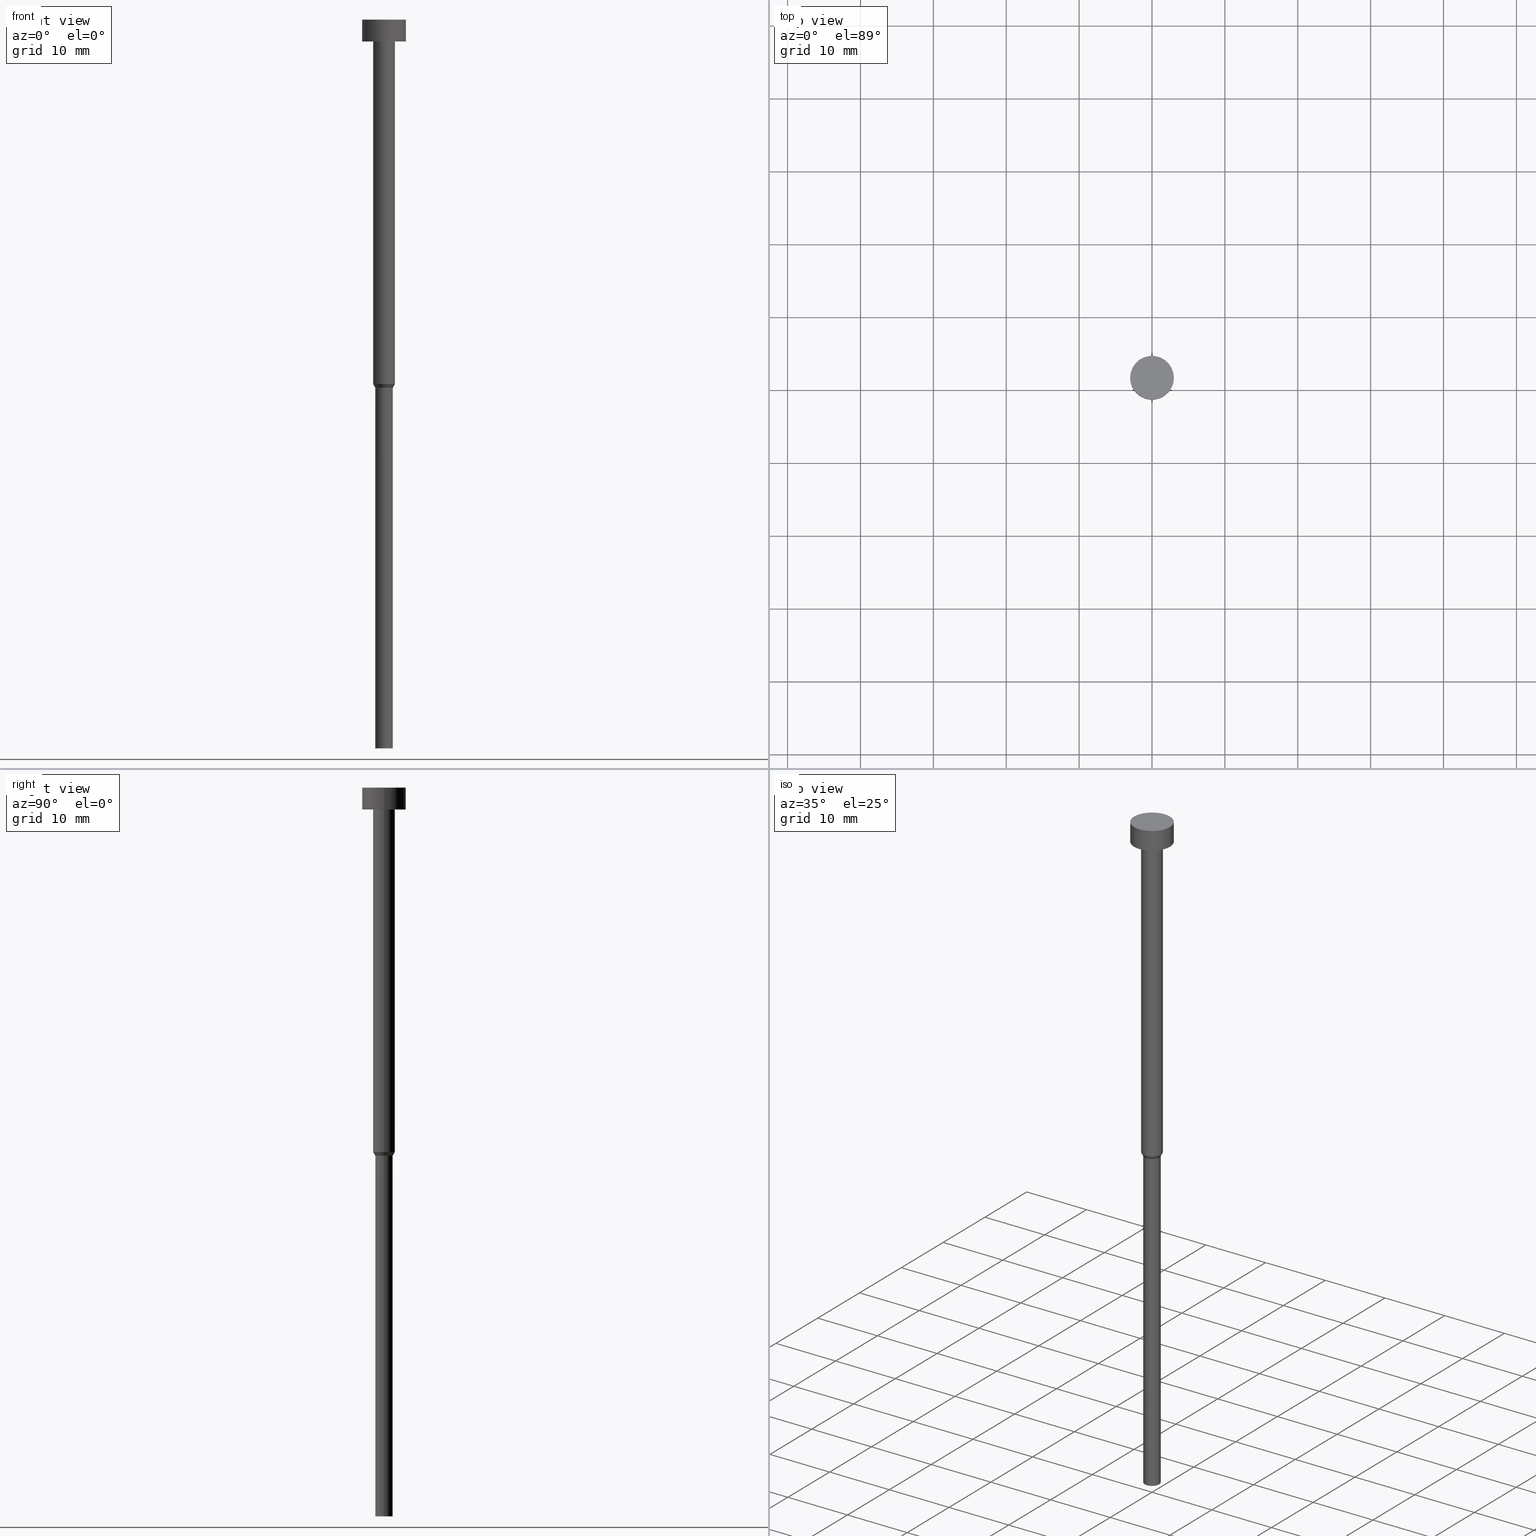
[diagram: canonical four-view strip — front | top / right | iso, engineering-drawing reading convention]
A machine part, canonical four-view strip (front | top / right | iso — engineering-drawing reading convention). The complete STEP part file that produces these views, byte-faithful:
ISO-10303-21;
HEADER;
FILE_DESCRIPTION (( 'STEP AP203' ),
    '1' );
FILE_NAME ('60b3.STEP',
    '2023-02-13T10:55:11',
    ( '' ),
    ( '' ),
    'SwSTEP 2.0',
    'SolidWorks 2019',
    '' );
FILE_SCHEMA (( 'CONFIG_CONTROL_DESIGN' ));
ENDSEC;

DATA;
#1 = FACE_BOUND ( 'NONE', #113, .T. ) ;
#2 = DIRECTION ( 'NONE',  ( 0.000000000000000000, 0.000000000000000000, -1.000000000000000000 ) ) ;
#3 = LOCAL_TIME ( 11, 55, 11.00000000000000000, #320 ) ;
#4 = FACE_OUTER_BOUND ( 'NONE', #191, .T. ) ;
#5 = CYLINDRICAL_SURFACE ( 'NONE', #234, 1.199999999999999956 ) ;
#6 = DIRECTION ( 'NONE',  ( -0.000000000000000000, -0.000000000000000000, 1.000000000000000000 ) ) ;
#7 = LOCAL_TIME ( 11, 55, 11.00000000000000000, #68 ) ;
#8 = ADVANCED_BREP_SHAPE_REPRESENTATION ( '60b3', ( #140, #119 ), #343 ) ;
#9 = CALENDAR_DATE ( 2023, 13, 2 ) ;
#10 = DATE_AND_TIME ( #48, #7 ) ;
#11 = ORIENTED_EDGE ( 'NONE', *, *, #139, .T. ) ;
#12 = DIRECTION ( 'NONE',  ( 0.000000000000000000, 0.000000000000000000, -1.000000000000000000 ) ) ;
#13 = PERSON_AND_ORGANIZATION_ROLE ( 'classification_officer' ) ;
#14 = VERTEX_POINT ( 'NONE', #315 ) ;
#15 = EDGE_CURVE ( 'NONE', #96, #291, #123, .T. ) ;
#16 = VERTEX_POINT ( 'NONE', #84 ) ;
#17 = CYLINDRICAL_SURFACE ( 'NONE', #342, 1.500000000000000000 ) ;
#18 = CARTESIAN_POINT ( 'NONE',  ( -1.500000000000000000, 1.836970198721029934E-16, -3.000000000000000888 ) ) ;
#19 = DIRECTION ( 'NONE',  ( 1.000000000000000000, 0.000000000000000000, 0.000000000000000000 ) ) ;
#20 = VERTEX_POINT ( 'NONE', #94 ) ;
#21 = EDGE_CURVE ( 'NONE', #132, #14, #201, .T. ) ;
#22 = CIRCLE ( 'NONE', #67, 3.000000000000000000 ) ;
#23 = CARTESIAN_POINT ( 'NONE',  ( 0.000000000000000000, 0.000000000000000000, 0.000000000000000000 ) ) ;
#24 = DIRECTION ( 'NONE',  ( 1.000000000000000000, 0.000000000000000000, 0.000000000000000000 ) ) ;
#25 = ORIENTED_EDGE ( 'NONE', *, *, #151, .F. ) ;
#26 = ORIENTED_EDGE ( 'NONE', *, *, #253, .T. ) ;
#27 = DIRECTION ( 'NONE',  ( 1.000000000000000000, 0.000000000000000000, 0.000000000000000000 ) ) ;
#28 = CARTESIAN_POINT ( 'NONE',  ( 1.500000000000000000, 0.000000000000000000, -50.00000000000000000 ) ) ;
#29 = EDGE_LOOP ( 'NONE', ( #25, #279 ) ) ;
#30 = CARTESIAN_POINT ( 'NONE',  ( 0.000000000000000000, 0.000000000000000000, 0.000000000000000000 ) ) ;
#31 = EDGE_LOOP ( 'NONE', ( #297, #303, #120, #256 ) ) ;
#32 = PRODUCT_DEFINITION_SHAPE ( 'NONE', 'NONE',  #283 ) ;
#33 = AXIS2_PLACEMENT_3D ( 'NONE', #302, #352, #327 ) ;
#34 = DIRECTION ( 'NONE',  ( 0.000000000000000000, -0.000000000000000000, 1.000000000000000000 ) ) ;
#35 = AXIS2_PLACEMENT_3D ( 'NONE', #130, #276, #127 ) ;
#36 = EDGE_CURVE ( 'NONE', #14, #62, #133, .T. ) ;
#37 =( NAMED_UNIT ( * ) SI_UNIT ( $, .STERADIAN. ) SOLID_ANGLE_UNIT ( ) );
#38 = AXIS2_PLACEMENT_3D ( 'NONE', #226, #34, #86 ) ;
#39 =( NAMED_UNIT ( * ) PLANE_ANGLE_UNIT ( ) SI_UNIT ( $, .RADIAN. ) );
#40 = APPLICATION_PROTOCOL_DEFINITION ( 'international standard', 'config_control_design', 1994, #167 ) ;
#41 = DIRECTION ( 'NONE',  ( -0.000000000000000000, -0.000000000000000000, 1.000000000000000000 ) ) ;
#42 = ORIENTED_EDGE ( 'NONE', *, *, #142, .T. ) ;
#43 = CALENDAR_DATE ( 2023, 13, 2 ) ;
#44 = CALENDAR_DATE ( 2023, 13, 2 ) ;
#45 = DESIGN_CONTEXT ( 'detailed design', #75, 'design' ) ;
#46 = APPROVAL_PERSON_ORGANIZATION ( #70, #289, #47 ) ;
#47 = APPROVAL_ROLE ( '' ) ;
#48 = CALENDAR_DATE ( 2023, 13, 2 ) ;
#49 = CARTESIAN_POINT ( 'NONE',  ( 0.000000000000000000, 0.000000000000000000, -3.673940397442059868E-16 ) ) ;
#50 = DIRECTION ( 'NONE',  ( -0.000000000000000000, -0.000000000000000000, 1.000000000000000000 ) ) ;
#51 = EDGE_CURVE ( 'NONE', #20, #146, #300, .T. ) ;
#52 = ORIENTED_EDGE ( 'NONE', *, *, #151, .T. ) ;
#53 = ORIENTED_EDGE ( 'NONE', *, *, #36, .F. ) ;
#54 = CARTESIAN_POINT ( 'NONE',  ( 0.000000000000000000, 0.000000000000000000, 0.000000000000000000 ) ) ;
#55 = EDGE_LOOP ( 'NONE', ( #108, #331, #242, #107 ) ) ;
#56 = CARTESIAN_POINT ( 'NONE',  ( 0.000000000000000000, 0.000000000000000000, -3.000000000000000888 ) ) ;
#57 = DIRECTION ( 'NONE',  ( -0.000000000000000000, -0.000000000000000000, 1.000000000000000000 ) ) ;
#58 = DIRECTION ( 'NONE',  ( -0.000000000000000000, -0.000000000000000000, 1.000000000000000000 ) ) ;
#59 = ADVANCED_FACE ( 'NONE', ( #1, #337 ), #63, .T. ) ;
#60 = ORIENTED_EDGE ( 'NONE', *, *, #83, .T. ) ;
#61 = CARTESIAN_POINT ( 'NONE',  ( -1.199999999999999956, 1.469576158976823553E-16, -50.51961524227066747 ) ) ;
#62 = VERTEX_POINT ( 'NONE', #186 ) ;
#63 = PLANE ( 'NONE',  #313 ) ;
#64 = EDGE_CURVE ( 'NONE', #20, #193, #22, .T. ) ;
#65 = ADVANCED_FACE ( 'NONE', ( #76 ), #159, .T. ) ;
#66 = CARTESIAN_POINT ( 'NONE',  ( 1.500000000000000000, 0.000000000000000000, -3.000000000000000888 ) ) ;
#67 = AXIS2_PLACEMENT_3D ( 'NONE', #214, #157, #24 ) ;
#68 = COORDINATED_UNIVERSAL_TIME_OFFSET ( 1, 0, .AHEAD. ) ;
#69 = DIRECTION ( 'NONE',  ( 1.000000000000000000, 0.000000000000000000, 0.000000000000000000 ) ) ;
#70 = PERSON_AND_ORGANIZATION ( #321, #176 ) ;
#71 = PERSON_AND_ORGANIZATION_ROLE ( 'creator' ) ;
#72 = FACE_OUTER_BOUND ( 'NONE', #55, .T. ) ;
#73 = PERSON_AND_ORGANIZATION_ROLE ( 'design_owner' ) ;
#74 = EDGE_CURVE ( 'NONE', #164, #132, #189, .T. ) ;
#75 = APPLICATION_CONTEXT ( 'configuration controlled 3d designs of mechanical parts and assemblies' ) ;
#76 = FACE_OUTER_BOUND ( 'NONE', #262, .T. ) ;
#77 = CIRCLE ( 'NONE', #281, 1.500000000000000000 ) ;
#78 = APPROVAL_PERSON_ORGANIZATION ( #121, #221, #345 ) ;
#79 = DIRECTION ( 'NONE',  ( 1.000000000000000000, 0.000000000000000000, 0.000000000000000000 ) ) ;
#80 = EDGE_CURVE ( 'NONE', #14, #207, #161, .T. ) ;
#81 = DIRECTION ( 'NONE',  ( -0.000000000000000000, -0.000000000000000000, 1.000000000000000000 ) ) ;
#82 = PRODUCT ( '60b3', '60b3', '', ( #141 ) ) ;
#83 = EDGE_CURVE ( 'NONE', #207, #243, #238, .T. ) ;
#84 = CARTESIAN_POINT ( 'NONE',  ( 3.000000000000000000, 0.000000000000000000, -3.673940397442059868E-16 ) ) ;
#85 = DIRECTION ( 'NONE',  ( 1.000000000000000000, 0.000000000000000000, 0.000000000000000000 ) ) ;
#86 = DIRECTION ( 'NONE',  ( 1.000000000000000000, 0.000000000000000000, 0.000000000000000000 ) ) ;
#87 = AXIS2_PLACEMENT_3D ( 'NONE', #54, #50, #19 ) ;
#88 = EDGE_LOOP ( 'NONE', ( #42, #335, #181, #220 ) ) ;
#89 = AXIS2_PLACEMENT_3D ( 'NONE', #49, #205, #274 ) ;
#90 = VECTOR ( 'NONE', #333, 1000.000000000000000 ) ;
#91 = COORDINATED_UNIVERSAL_TIME_OFFSET ( 1, 0, .AHEAD. ) ;
#92 = CC_DESIGN_PERSON_AND_ORGANIZATION_ASSIGNMENT ( #208, #71, ( #283 ) ) ;
#93 = EDGE_CURVE ( 'NONE', #146, #16, #212, .T. ) ;
#94 = CARTESIAN_POINT ( 'NONE',  ( -3.000000000000000000, 3.673940397442059868E-16, -3.000000000000000888 ) ) ;
#95 = PERSON_AND_ORGANIZATION ( #321, #176 ) ;
#96 = VERTEX_POINT ( 'NONE', #18 ) ;
#97 = CALENDAR_DATE ( 2023, 13, 2 ) ;
#98 = CONICAL_SURFACE ( 'NONE', #195, 1.500000000000000000, 0.5235987755982992597 ) ;
#99 = DIRECTION ( 'NONE',  ( -0.5000000000000003331, 6.123233995736769734E-17, 0.8660254037844383745 ) ) ;
#100 = PERSON_AND_ORGANIZATION ( #321, #176 ) ;
#101 = ORIENTED_EDGE ( 'NONE', *, *, #135, .F. ) ;
#102 = AXIS2_PLACEMENT_3D ( 'NONE', #228, #340, #210 ) ;
#103 = ADVANCED_FACE ( 'NONE', ( #72 ), #311, .T. ) ;
#104 = CARTESIAN_POINT ( 'NONE',  ( 1.500000000000000000, 0.000000000000000000, 0.000000000000000000 ) ) ;
#105 = AXIS2_PLACEMENT_3D ( 'NONE', #264, #296, #270 ) ;
#106 = CARTESIAN_POINT ( 'NONE',  ( 0.000000000000000000, -3.000000000000000000, -3.000000000000000888 ) ) ;
#107 = ORIENTED_EDGE ( 'NONE', *, *, #355, .F. ) ;
#108 = ORIENTED_EDGE ( 'NONE', *, *, #83, .F. ) ;
#109 = ORIENTED_EDGE ( 'NONE', *, *, #93, .F. ) ;
#110 = PLANE ( 'NONE',  #38 ) ;
#111 = DIRECTION ( 'NONE',  ( -0.000000000000000000, -0.000000000000000000, 1.000000000000000000 ) ) ;
#112 = EDGE_LOOP ( 'NONE', ( #52, #183, #152, #158 ) ) ;
#113 = EDGE_LOOP ( 'NONE', ( #239, #286 ) ) ;
#114 = ADVANCED_FACE ( 'NONE', ( #267 ), #323, .T. ) ;
#115 = DIRECTION ( 'NONE',  ( -0.000000000000000000, -0.000000000000000000, 1.000000000000000000 ) ) ;
#116 = APPROVAL_DATE_TIME ( #346, #196 ) ;
#117 = ADVANCED_FACE ( 'NONE', ( #179 ), #17, .T. ) ;
#118 = CIRCLE ( 'NONE', #197, 1.199999999999999956 ) ;
#119 = AXIS2_PLACEMENT_3D ( 'NONE', #269, #204, #237 ) ;
#120 = ORIENTED_EDGE ( 'NONE', *, *, #309, .F. ) ;
#121 = PERSON_AND_ORGANIZATION ( #321, #176 ) ;
#122 = DATE_TIME_ROLE ( 'classification_date' ) ;
#123 = CIRCLE ( 'NONE', #332, 1.500000000000000000 ) ;
#124 = ORIENTED_EDGE ( 'NONE', *, *, #15, .F. ) ;
#125 = DIRECTION ( 'NONE',  ( -0.000000000000000000, -0.000000000000000000, 1.000000000000000000 ) ) ;
#126 = APPROVAL_DATE_TIME ( #10, #289 ) ;
#127 = DIRECTION ( 'NONE',  ( 1.000000000000000000, 0.000000000000000000, 0.000000000000000000 ) ) ;
#128 = FACE_OUTER_BOUND ( 'NONE', #222, .T. ) ;
#129 = CC_DESIGN_SECURITY_CLASSIFICATION ( #223, ( #305 ) ) ;
#130 = CARTESIAN_POINT ( 'NONE',  ( 0.000000000000000000, 0.000000000000000000, 0.000000000000000000 ) ) ;
#131 = CARTESIAN_POINT ( 'NONE',  ( 1.199999999999999956, 0.000000000000000000, -100.0000000000000000 ) ) ;
#132 = VERTEX_POINT ( 'NONE', #131 ) ;
#133 = LINE ( 'NONE', #28, #182 ) ;
#134 = ORIENTED_EDGE ( 'NONE', *, *, #184, .F. ) ;
#135 = EDGE_CURVE ( 'NONE', #207, #14, #118, .T. ) ;
#136 = LOCAL_TIME ( 11, 55, 11.00000000000000000, #240 ) ;
#137 = CARTESIAN_POINT ( 'NONE',  ( 3.000000000000000000, 0.000000000000000000, 0.000000000000000000 ) ) ;
#138 = LINE ( 'NONE', #259, #261 ) ;
#139 = EDGE_CURVE ( 'NONE', #62, #291, #245, .T. ) ;
#140 = MANIFOLD_SOLID_BREP ( 'Rotovat1', #255 ) ;
#141 = MECHANICAL_CONTEXT ( 'NONE', #167, 'mechanical' ) ;
#142 = EDGE_CURVE ( 'NONE', #132, #164, #185, .T. ) ;
#143 = DIRECTION ( 'NONE',  ( 1.000000000000000000, 0.000000000000000000, 0.000000000000000000 ) ) ;
#144 = DIRECTION ( 'NONE',  ( 1.000000000000000000, 0.000000000000000000, 0.000000000000000000 ) ) ;
#145 = EDGE_LOOP ( 'NONE', ( #134, #229, #11, #124 ) ) ;
#146 = VERTEX_POINT ( 'NONE', #298 ) ;
#147 = DATE_AND_TIME ( #44, #136 ) ;
#148 = FACE_OUTER_BOUND ( 'NONE', #236, .T. ) ;
#149 = DIRECTION ( 'NONE',  ( -0.000000000000000000, -0.000000000000000000, 1.000000000000000000 ) ) ;
#150 = CARTESIAN_POINT ( 'NONE',  ( 0.000000000000000000, 0.000000000000000000, -50.00000000000000000 ) ) ;
#151 = EDGE_CURVE ( 'NONE', #193, #20, #175, .T. ) ;
#152 = ORIENTED_EDGE ( 'NONE', *, *, #169, .F. ) ;
#153 = UNCERTAINTY_MEASURE_WITH_UNIT (LENGTH_MEASURE( 1.000000000000000082E-05 ), #252, 'distance_accuracy_value', 'NONE');
#154 = AXIS2_PLACEMENT_3D ( 'NONE', #150, #244, #290 ) ;
#155 = LINE ( 'NONE', #301, #232 ) ;
#156 = DIRECTION ( 'NONE',  ( 1.000000000000000000, 0.000000000000000000, 0.000000000000000000 ) ) ;
#157 = DIRECTION ( 'NONE',  ( -0.000000000000000000, -0.000000000000000000, 1.000000000000000000 ) ) ;
#158 = ORIENTED_EDGE ( 'NONE', *, *, #253, .F. ) ;
#159 = CYLINDRICAL_SURFACE ( 'NONE', #166, 1.199999999999999956 ) ;
#160 = ADVANCED_FACE ( 'NONE', ( #148 ), #98, .T. ) ;
#161 = CIRCLE ( 'NONE', #105, 1.199999999999999956 ) ;
#162 = DIRECTION ( 'NONE',  ( -0.000000000000000000, -0.000000000000000000, 1.000000000000000000 ) ) ;
#163 = LOCAL_TIME ( 11, 55, 11.00000000000000000, #91 ) ;
#164 = VERTEX_POINT ( 'NONE', #174 ) ;
#165 = DIRECTION ( 'NONE',  ( -0.000000000000000000, -0.000000000000000000, 1.000000000000000000 ) ) ;
#166 = AXIS2_PLACEMENT_3D ( 'NONE', #23, #115, #230 ) ;
#167 = APPLICATION_CONTEXT ( 'configuration controlled 3d designs of mechanical parts and assemblies' ) ;
#168 = PRODUCT_RELATED_PRODUCT_CATEGORY ( 'detail', '', ( #82 ) ) ;
#169 = EDGE_CURVE ( 'NONE', #16, #146, #260, .T. ) ;
#170 = EDGE_LOOP ( 'NONE', ( #216, #338 ) ) ;
#171 = APPROVAL_ROLE ( '' ) ;
#172 = DATE_AND_TIME ( #97, #163 ) ;
#173 = SHAPE_DEFINITION_REPRESENTATION ( #32, #8 ) ;
#174 = CARTESIAN_POINT ( 'NONE',  ( -1.199999999999999956, 1.469576158976823553E-16, -100.0000000000000000 ) ) ;
#175 = CIRCLE ( 'NONE', #206, 3.000000000000000000 ) ;
#176 = ORGANIZATION ( 'NEUR�EN�', 'NEUR�EN�', '' ) ;
#177 = APPLICATION_PROTOCOL_DEFINITION ( 'international standard', 'config_control_design', 1994, #75 ) ;
#178 = CC_DESIGN_PERSON_AND_ORGANIZATION_ASSIGNMENT ( #100, #73, ( #82 ) ) ;
#179 = FACE_OUTER_BOUND ( 'NONE', #31, .T. ) ;
#180 = PERSON_AND_ORGANIZATION_ROLE ( 'design_supplier' ) ;
#181 = ORIENTED_EDGE ( 'NONE', *, *, #80, .F. ) ;
#182 = VECTOR ( 'NONE', #254, 1000.000000000000114 ) ;
#183 = ORIENTED_EDGE ( 'NONE', *, *, #51, .T. ) ;
#184 = EDGE_CURVE ( 'NONE', #243, #96, #155, .T. ) ;
#185 = CIRCLE ( 'NONE', #33, 1.199999999999999956 ) ;
#186 = CARTESIAN_POINT ( 'NONE',  ( 1.500000000000000000, 0.000000000000000000, -50.00000000000000000 ) ) ;
#187 = CYLINDRICAL_SURFACE ( 'NONE', #87, 3.000000000000000000 ) ;
#188 = CARTESIAN_POINT ( 'NONE',  ( 0.000000000000000000, 0.000000000000000000, -50.51961524227066747 ) ) ;
#189 = CIRCLE ( 'NONE', #271, 1.199999999999999956 ) ;
#190 = CARTESIAN_POINT ( 'NONE',  ( 1.199999999999999956, 0.000000000000000000, 0.000000000000000000 ) ) ;
#191 = EDGE_LOOP ( 'NONE', ( #202, #249 ) ) ;
#192 = CC_DESIGN_APPROVAL ( #196, ( #305 ) ) ;
#193 = VERTEX_POINT ( 'NONE', #353 ) ;
#194 = CC_DESIGN_PERSON_AND_ORGANIZATION_ASSIGNMENT ( #95, #13, ( #223 ) ) ;
#195 = AXIS2_PLACEMENT_3D ( 'NONE', #295, #149, #143 ) ;
#196 = APPROVAL ( #263, 'NEUR�EN�' ) ;
#197 = AXIS2_PLACEMENT_3D ( 'NONE', #188, #275, #156 ) ;
#198 = PERSON_AND_ORGANIZATION ( #321, #176 ) ;
#199 = FACE_OUTER_BOUND ( 'NONE', #145, .T. ) ;
#200 = AXIS2_PLACEMENT_3D ( 'NONE', #351, #12, #203 ) ;
#201 = LINE ( 'NONE', #190, #218 ) ;
#202 = ORIENTED_EDGE ( 'NONE', *, *, #169, .T. ) ;
#203 = DIRECTION ( 'NONE',  ( -1.000000000000000000, 0.000000000000000000, -0.000000000000000000 ) ) ;
#204 = DIRECTION ( 'NONE',  ( 0.000000000000000000, 0.000000000000000000, 1.000000000000000000 ) ) ;
#205 = DIRECTION ( 'NONE',  ( -0.000000000000000000, -0.000000000000000000, 1.000000000000000000 ) ) ;
#206 = AXIS2_PLACEMENT_3D ( 'NONE', #56, #162, #69 ) ;
#207 = VERTEX_POINT ( 'NONE', #61 ) ;
#208 = PERSON_AND_ORGANIZATION ( #321, #176 ) ;
#209 = DIRECTION ( 'NONE',  ( -0.000000000000000000, -0.000000000000000000, 1.000000000000000000 ) ) ;
#210 = DIRECTION ( 'NONE',  ( 1.000000000000000000, 0.000000000000000000, 0.000000000000000000 ) ) ;
#211 = COORDINATED_UNIVERSAL_TIME_OFFSET ( 1, 0, .AHEAD. ) ;
#212 = CIRCLE ( 'NONE', #89, 3.000000000000000000 ) ;
#213 = FACE_OUTER_BOUND ( 'NONE', #112, .T. ) ;
#214 = CARTESIAN_POINT ( 'NONE',  ( 0.000000000000000000, 0.000000000000000000, -3.000000000000000888 ) ) ;
#215 = DIRECTION ( 'NONE',  ( -0.000000000000000000, -0.000000000000000000, 1.000000000000000000 ) ) ;
#216 = ORIENTED_EDGE ( 'NONE', *, *, #142, .F. ) ;
#217 = DIRECTION ( 'NONE',  ( 1.000000000000000000, 0.000000000000000000, 0.000000000000000000 ) ) ;
#218 = VECTOR ( 'NONE', #58, 1000.000000000000000 ) ;
#219 = CYLINDRICAL_SURFACE ( 'NONE', #250, 3.000000000000000000 ) ;
#220 = ORIENTED_EDGE ( 'NONE', *, *, #21, .F. ) ;
#221 = APPROVAL ( #235, 'NEUR�EN�' ) ;
#222 = EDGE_LOOP ( 'NONE', ( #251, #233, #26, #109 ) ) ;
#223 = SECURITY_CLASSIFICATION ( '', '', #288 ) ;
#224 = DIRECTION ( 'NONE',  ( -1.000000000000000000, 0.000000000000000000, -0.000000000000000000 ) ) ;
#225 = EDGE_CURVE ( 'NONE', #62, #243, #77, .T. ) ;
#226 = CARTESIAN_POINT ( 'NONE',  ( 0.000000000000000000, 0.000000000000000000, -1.836970198721029934E-16 ) ) ;
#227 = DIRECTION ( 'NONE',  ( 1.000000000000000000, 0.000000000000000000, 0.000000000000000000 ) ) ;
#228 = CARTESIAN_POINT ( 'NONE',  ( 0.000000000000000000, 0.000000000000000000, -3.000000000000000888 ) ) ;
#229 = ORIENTED_EDGE ( 'NONE', *, *, #355, .T. ) ;
#230 = DIRECTION ( 'NONE',  ( 1.000000000000000000, 0.000000000000000000, 0.000000000000000000 ) ) ;
#231 = PERSON_AND_ORGANIZATION_ROLE ( 'creator' ) ;
#232 = VECTOR ( 'NONE', #247, 1000.000000000000000 ) ;
#233 = ORIENTED_EDGE ( 'NONE', *, *, #64, .T. ) ;
#234 = AXIS2_PLACEMENT_3D ( 'NONE', #30, #111, #227 ) ;
#235 = APPROVAL_STATUS ( 'not_yet_approved' ) ;
#236 = EDGE_LOOP ( 'NONE', ( #246, #60, #277, #53 ) ) ;
#237 = DIRECTION ( 'NONE',  ( 1.000000000000000000, 0.000000000000000000, 0.000000000000000000 ) ) ;
#238 = LINE ( 'NONE', #349, #310 ) ;
#239 = ORIENTED_EDGE ( 'NONE', *, *, #309, .T. ) ;
#240 = COORDINATED_UNIVERSAL_TIME_OFFSET ( 1, 0, .AHEAD. ) ;
#241 = CIRCLE ( 'NONE', #102, 1.500000000000000000 ) ;
#242 = ORIENTED_EDGE ( 'NONE', *, *, #36, .T. ) ;
#243 = VERTEX_POINT ( 'NONE', #308 ) ;
#244 = DIRECTION ( 'NONE',  ( -0.000000000000000000, -0.000000000000000000, 1.000000000000000000 ) ) ;
#245 = LINE ( 'NONE', #104, #90 ) ;
#246 = ORIENTED_EDGE ( 'NONE', *, *, #80, .T. ) ;
#247 = DIRECTION ( 'NONE',  ( -0.000000000000000000, -0.000000000000000000, 1.000000000000000000 ) ) ;
#248 = CARTESIAN_POINT ( 'NONE',  ( 0.000000000000000000, 0.000000000000000000, -50.00000000000000000 ) ) ;
#249 = ORIENTED_EDGE ( 'NONE', *, *, #93, .T. ) ;
#250 = AXIS2_PLACEMENT_3D ( 'NONE', #273, #125, #322 ) ;
#251 = ORIENTED_EDGE ( 'NONE', *, *, #51, .F. ) ;
#252 =( LENGTH_UNIT ( ) NAMED_UNIT ( * ) SI_UNIT ( .MILLI., .METRE. ) );
#253 = EDGE_CURVE ( 'NONE', #193, #16, #280, .T. ) ;
#254 = DIRECTION ( 'NONE',  ( 0.5000000000000003331, 0.000000000000000000, 0.8660254037844383745 ) ) ;
#255 = CLOSED_SHELL ( 'NONE', ( #341, #117, #160, #265, #114, #65, #103, #348, #59, #330, #278 ) ) ;
#256 = ORIENTED_EDGE ( 'NONE', *, *, #139, .F. ) ;
#257 = LOCAL_TIME ( 11, 55, 11.00000000000000000, #211 ) ;
#258 = CARTESIAN_POINT ( 'NONE',  ( 0.000000000000000000, 0.000000000000000000, -50.00000000000000000 ) ) ;
#259 = CARTESIAN_POINT ( 'NONE',  ( -1.199999999999999956, 1.469576158976823553E-16, 0.000000000000000000 ) ) ;
#260 = CIRCLE ( 'NONE', #304, 3.000000000000000000 ) ;
#261 = VECTOR ( 'NONE', #6, 1000.000000000000000 ) ;
#262 = EDGE_LOOP ( 'NONE', ( #293, #325, #268, #101 ) ) ;
#263 = APPROVAL_STATUS ( 'not_yet_approved' ) ;
#264 = CARTESIAN_POINT ( 'NONE',  ( 0.000000000000000000, 0.000000000000000000, -50.51961524227066747 ) ) ;
#265 = ADVANCED_FACE ( 'NONE', ( #339 ), #5, .T. ) ;
#266 = CC_DESIGN_PERSON_AND_ORGANIZATION_ASSIGNMENT ( #198, #180, ( #305 ) ) ;
#267 = FACE_OUTER_BOUND ( 'NONE', #170, .T. ) ;
#268 = ORIENTED_EDGE ( 'NONE', *, *, #21, .T. ) ;
#269 = CARTESIAN_POINT ( 'NONE',  ( 0.000000000000000000, 0.000000000000000000, 0.000000000000000000 ) ) ;
#270 = DIRECTION ( 'NONE',  ( 1.000000000000000000, 0.000000000000000000, 0.000000000000000000 ) ) ;
#271 = AXIS2_PLACEMENT_3D ( 'NONE', #285, #41, #144 ) ;
#272 = CARTESIAN_POINT ( 'NONE',  ( 0.000000000000000000, 0.000000000000000000, -3.673940397442059868E-16 ) ) ;
#273 = CARTESIAN_POINT ( 'NONE',  ( 0.000000000000000000, 0.000000000000000000, 0.000000000000000000 ) ) ;
#274 = DIRECTION ( 'NONE',  ( 1.000000000000000000, 0.000000000000000000, 0.000000000000000000 ) ) ;
#275 = DIRECTION ( 'NONE',  ( -0.000000000000000000, -0.000000000000000000, 1.000000000000000000 ) ) ;
#276 = DIRECTION ( 'NONE',  ( -0.000000000000000000, -0.000000000000000000, 1.000000000000000000 ) ) ;
#277 = ORIENTED_EDGE ( 'NONE', *, *, #225, .F. ) ;
#278 = ADVANCED_FACE ( 'NONE', ( #4 ), #110, .T. ) ;
#279 = ORIENTED_EDGE ( 'NONE', *, *, #64, .F. ) ;
#280 = LINE ( 'NONE', #137, #326 ) ;
#281 = AXIS2_PLACEMENT_3D ( 'NONE', #258, #81, #306 ) ;
#282 = CC_DESIGN_APPROVAL ( #221, ( #283 ) ) ;
#283 = PRODUCT_DEFINITION ( 'NEZN�M�', '', #305, #45 ) ;
#284 = PERSON_AND_ORGANIZATION ( #321, #176 ) ;
#285 = CARTESIAN_POINT ( 'NONE',  ( 0.000000000000000000, 0.000000000000000000, -100.0000000000000000 ) ) ;
#286 = ORIENTED_EDGE ( 'NONE', *, *, #15, .T. ) ;
#287 = CC_DESIGN_DATE_AND_TIME_ASSIGNMENT ( #312, #122, ( #223 ) ) ;
#288 = SECURITY_CLASSIFICATION_LEVEL ( 'unclassified' ) ;
#289 = APPROVAL ( #347, 'NEUR�EN�' ) ;
#290 = DIRECTION ( 'NONE',  ( 1.000000000000000000, 0.000000000000000000, 0.000000000000000000 ) ) ;
#291 = VERTEX_POINT ( 'NONE', #66 ) ;
#292 = CARTESIAN_POINT ( 'NONE',  ( 0.000000000000000000, 0.000000000000000000, -3.000000000000000888 ) ) ;
#293 = ORIENTED_EDGE ( 'NONE', *, *, #299, .F. ) ;
#294 = PERSON_AND_ORGANIZATION ( #321, #176 ) ;
#295 = CARTESIAN_POINT ( 'NONE',  ( 0.000000000000000000, 0.000000000000000000, -50.00000000000000000 ) ) ;
#296 = DIRECTION ( 'NONE',  ( -0.000000000000000000, -0.000000000000000000, 1.000000000000000000 ) ) ;
#297 = ORIENTED_EDGE ( 'NONE', *, *, #225, .T. ) ;
#298 = CARTESIAN_POINT ( 'NONE',  ( -3.000000000000000000, 3.673940397442059868E-16, -3.673940397442059868E-16 ) ) ;
#299 = EDGE_CURVE ( 'NONE', #164, #207, #138, .T. ) ;
#300 = LINE ( 'NONE', #307, #324 ) ;
#301 = CARTESIAN_POINT ( 'NONE',  ( -1.500000000000000000, 1.836970198721029934E-16, 0.000000000000000000 ) ) ;
#302 = CARTESIAN_POINT ( 'NONE',  ( 0.000000000000000000, 0.000000000000000000, -100.0000000000000000 ) ) ;
#303 = ORIENTED_EDGE ( 'NONE', *, *, #184, .T. ) ;
#304 = AXIS2_PLACEMENT_3D ( 'NONE', #272, #57, #217 ) ;
#305 = PRODUCT_DEFINITION_FORMATION_WITH_SPECIFIED_SOURCE ( 'LIBOVOLN�', '', #82, .NOT_KNOWN. ) ;
#306 = DIRECTION ( 'NONE',  ( 1.000000000000000000, 0.000000000000000000, 0.000000000000000000 ) ) ;
#307 = CARTESIAN_POINT ( 'NONE',  ( -3.000000000000000000, 3.673940397442059868E-16, 0.000000000000000000 ) ) ;
#308 = CARTESIAN_POINT ( 'NONE',  ( -1.500000000000000000, 1.836970198721029934E-16, -50.00000000000000000 ) ) ;
#309 = EDGE_CURVE ( 'NONE', #291, #96, #241, .T. ) ;
#310 = VECTOR ( 'NONE', #99, 1000.000000000000114 ) ;
#311 = CONICAL_SURFACE ( 'NONE', #154, 1.500000000000000000, 0.5235987755982992597 ) ;
#312 = DATE_AND_TIME ( #43, #3 ) ;
#313 = AXIS2_PLACEMENT_3D ( 'NONE', #106, #2, #224 ) ;
#314 = DATE_TIME_ROLE ( 'creation_date' ) ;
#315 = CARTESIAN_POINT ( 'NONE',  ( 1.199999999999999956, 0.000000000000000000, -50.51961524227066747 ) ) ;
#316 = CARTESIAN_POINT ( 'NONE',  ( 0.000000000000000000, 0.000000000000000000, 0.000000000000000000 ) ) ;
#317 = APPROVAL_DATE_TIME ( #147, #221 ) ;
#318 = DIRECTION ( 'NONE',  ( -0.000000000000000000, -0.000000000000000000, 1.000000000000000000 ) ) ;
#319 = CIRCLE ( 'NONE', #336, 1.500000000000000000 ) ;
#320 = COORDINATED_UNIVERSAL_TIME_OFFSET ( 1, 0, .AHEAD. ) ;
#321 = PERSON ( 'NEUR�EN�', 'NEUR�EN�', 'NEUR�EN�', ('NEUR�EN�'), ('NEUR�EN�'), ('NEUR�EN�') ) ;
#322 = DIRECTION ( 'NONE',  ( 1.000000000000000000, 0.000000000000000000, 0.000000000000000000 ) ) ;
#323 = PLANE ( 'NONE',  #200 ) ;
#324 = VECTOR ( 'NONE', #334, 1000.000000000000000 ) ;
#325 = ORIENTED_EDGE ( 'NONE', *, *, #74, .T. ) ;
#326 = VECTOR ( 'NONE', #165, 1000.000000000000000 ) ;
#327 = DIRECTION ( 'NONE',  ( 1.000000000000000000, 0.000000000000000000, 0.000000000000000000 ) ) ;
#328 = CC_DESIGN_DATE_AND_TIME_ASSIGNMENT ( #172, #314, ( #283 ) ) ;
#329 = APPROVAL_PERSON_ORGANIZATION ( #294, #196, #171 ) ;
#330 = ADVANCED_FACE ( 'NONE', ( #128 ), #219, .T. ) ;
#331 = ORIENTED_EDGE ( 'NONE', *, *, #135, .T. ) ;
#332 = AXIS2_PLACEMENT_3D ( 'NONE', #292, #318, #27 ) ;
#333 = DIRECTION ( 'NONE',  ( -0.000000000000000000, -0.000000000000000000, 1.000000000000000000 ) ) ;
#334 = DIRECTION ( 'NONE',  ( -0.000000000000000000, -0.000000000000000000, 1.000000000000000000 ) ) ;
#335 = ORIENTED_EDGE ( 'NONE', *, *, #299, .T. ) ;
#336 = AXIS2_PLACEMENT_3D ( 'NONE', #248, #215, #85 ) ;
#337 = FACE_OUTER_BOUND ( 'NONE', #29, .T. ) ;
#338 = ORIENTED_EDGE ( 'NONE', *, *, #74, .F. ) ;
#339 = FACE_OUTER_BOUND ( 'NONE', #88, .T. ) ;
#340 = DIRECTION ( 'NONE',  ( -0.000000000000000000, -0.000000000000000000, 1.000000000000000000 ) ) ;
#341 = ADVANCED_FACE ( 'NONE', ( #213 ), #187, .T. ) ;
#342 = AXIS2_PLACEMENT_3D ( 'NONE', #316, #209, #79 ) ;
#343 =( GEOMETRIC_REPRESENTATION_CONTEXT ( 3 ) GLOBAL_UNCERTAINTY_ASSIGNED_CONTEXT ( ( #153 ) ) GLOBAL_UNIT_ASSIGNED_CONTEXT ( ( #252, #39, #37 ) ) REPRESENTATION_CONTEXT ( 'NONE', 'WORKASPACE' ) );
#344 = CYLINDRICAL_SURFACE ( 'NONE', #35, 1.500000000000000000 ) ;
#345 = APPROVAL_ROLE ( '' ) ;
#346 = DATE_AND_TIME ( #9, #257 ) ;
#347 = APPROVAL_STATUS ( 'not_yet_approved' ) ;
#348 = ADVANCED_FACE ( 'NONE', ( #199 ), #344, .T. ) ;
#349 = CARTESIAN_POINT ( 'NONE',  ( -1.500000000000000000, 1.836970198721029934E-16, -50.00000000000000000 ) ) ;
#350 = CC_DESIGN_APPROVAL ( #289, ( #223 ) ) ;
#351 = CARTESIAN_POINT ( 'NONE',  ( 0.000000000000000000, 0.000000000000000000, -100.0000000000000000 ) ) ;
#352 = DIRECTION ( 'NONE',  ( -0.000000000000000000, -0.000000000000000000, 1.000000000000000000 ) ) ;
#353 = CARTESIAN_POINT ( 'NONE',  ( 3.000000000000000000, 0.000000000000000000, -3.000000000000000888 ) ) ;
#354 = CC_DESIGN_PERSON_AND_ORGANIZATION_ASSIGNMENT ( #284, #231, ( #305 ) ) ;
#355 = EDGE_CURVE ( 'NONE', #243, #62, #319, .T. ) ;
ENDSEC;
END-ISO-10303-21;
